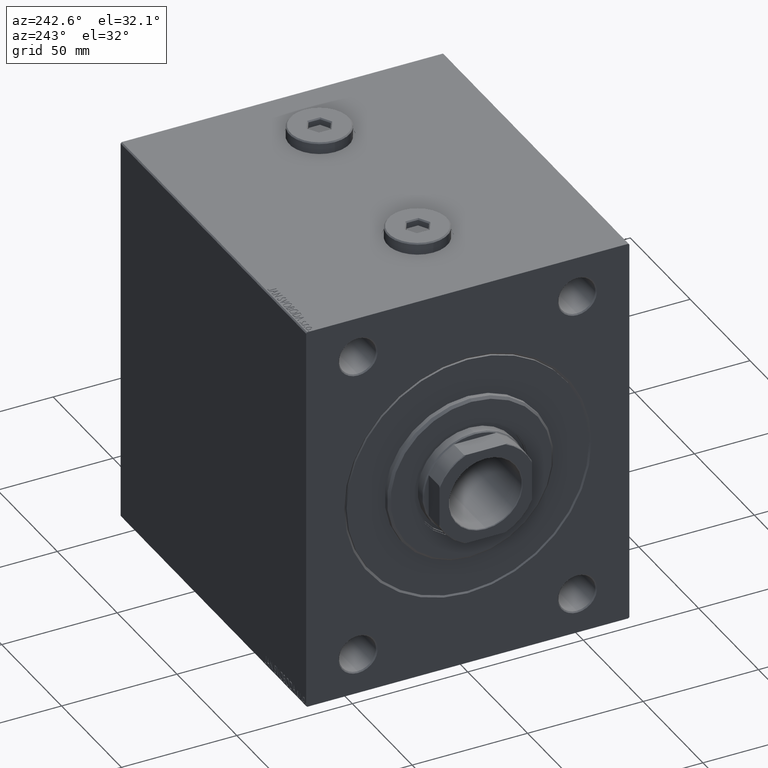
[diagram: clean part render]
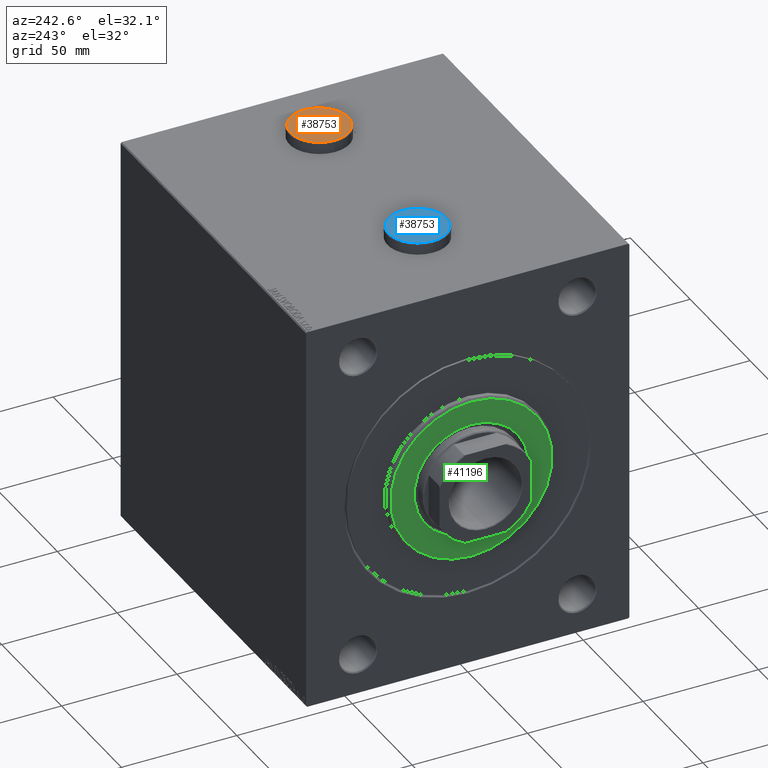
[diagram: same view with three faces highlighted in distinct colors, each labeled with its STEP entity id]
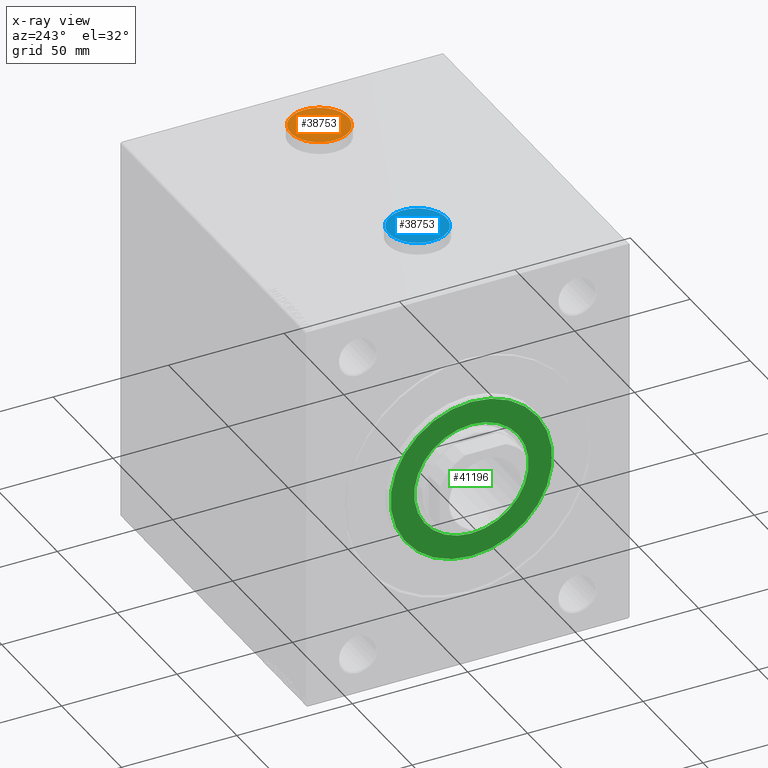
[diagram: x-ray of the same camera — body ghosted, the three highlighted faces saturated]
A machine part, auxiliary view with three faces highlighted in distinct colors.
The next image is the same camera in x-ray (body ghosted, the three faces saturated) — at least one of them is partly hidden behind the body in this view.
Their STEP definitions:

[orange] entity #38753 — the highlighted planar face has unit normal (0, 0, 1).
#335 = CARTESIAN_POINT ( 'NONE',  ( 4.833333333333341919, -2.790526301083194216, 5.000000000000000000 ) ) ;
#1360 = CIRCLE ( 'NONE', #36787, 12.50000000000001066 ) ;
#1605 = LINE ( 'NONE', #15712, #33909 ) ;
#1746 = DIRECTION ( 'NONE',  ( -0.8660254037844385966, 0.5000000000000001110, 0.000000000000000000 ) ) ;
#2842 = LINE ( 'NONE', #23191, #15684 ) ;
#3436 = ORIENTED_EDGE ( 'NONE', *, *, #6638, .T. ) ;
#3451 = VERTEX_POINT ( 'NONE', #17042 ) ;
#4862 = FACE_OUTER_BOUND ( 'NONE', #30778, .T. ) ;
#6049 = CARTESIAN_POINT ( 'NONE',  ( -4.833333333333340143, 2.790526301083195104, 5.000000000000000000 ) ) ;
#6568 = DIRECTION ( 'NONE',  ( 0.8660254037844388186, 0.4999999999999997780, 0.000000000000000000 ) ) ;
#6638 = EDGE_CURVE ( 'NONE', #3451, #8632, #1360, .T. ) ;
#8632 = VERTEX_POINT ( 'NONE', #35015 ) ;
#9058 = EDGE_CURVE ( 'NONE', #36765, #10443, #23319, .T. ) ;
#9472 = CARTESIAN_POINT ( 'NONE',  ( 4.833333333333341919, 2.790526301083194216, 5.000000000000000000 ) ) ;
#9677 = AXIS2_PLACEMENT_3D ( 'NONE', #25896, #18963, #15508 ) ;
#10304 = DIRECTION ( 'NONE',  ( 0.000000000000000000, 1.000000000000000000, 0.000000000000000000 ) ) ;
#10443 = VERTEX_POINT ( 'NONE', #9472 ) ;
#10695 = EDGE_CURVE ( 'NONE', #27374, #36765, #24578, .T. ) ;
#10921 = VERTEX_POINT ( 'NONE', #38617 ) ;
#12031 = EDGE_CURVE ( 'NONE', #10921, #27610, #43817, .T. ) ;
#12189 = DIRECTION ( 'NONE',  ( -0.8660254037844387076, -0.4999999999999998335, 0.000000000000000000 ) ) ;
#15508 = DIRECTION ( 'NONE',  ( 1.000000000000000000, 0.000000000000000000, -0.000000000000000000 ) ) ;
#15673 = EDGE_CURVE ( 'NONE', #18970, #10921, #19565, .T. ) ;
#15684 = VECTOR ( 'NONE', #23884, 1000.000000000000000 ) ;
#15712 = CARTESIAN_POINT ( 'NONE',  ( -4.833333333333340143, 2.501851166488380240, 5.000000000000000000 ) ) ;
#16583 = VECTOR ( 'NONE', #1746, 1000.000000000000114 ) ;
#17042 = CARTESIAN_POINT ( 'NONE',  ( -12.50000000000001066, 0.000000000000000000, 5.000000000000000000 ) ) ;
#17664 = DIRECTION ( 'NONE',  ( 0.000000000000000000, 0.000000000000000000, 1.000000000000000000 ) ) ;
#18755 = ORIENTED_EDGE ( 'NONE', *, *, #38812, .T. ) ;
#18963 = DIRECTION ( 'NONE',  ( 0.000000000000000000, 0.000000000000000000, 1.000000000000000000 ) ) ;
#18970 = VERTEX_POINT ( 'NONE', #335 ) ;
#19565 = LINE ( 'NONE', #23498, #29908 ) ;
#19871 = VECTOR ( 'NONE', #29780, 1000.000000000000000 ) ;
#20363 = ORIENTED_EDGE ( 'NONE', *, *, #9058, .T. ) ;
#22341 = CARTESIAN_POINT ( 'NONE',  ( -4.583333333333337478, -2.934863868380603424, 5.000000000000000000 ) ) ;
#23191 = CARTESIAN_POINT ( 'NONE',  ( 4.833333333333341919, -2.501851166488378908, 5.000000000000000000 ) ) ;
#23319 = LINE ( 'NONE', #41119, #19871 ) ;
#23498 = CARTESIAN_POINT ( 'NONE',  ( 0.2500000000000015543, -5.436715034868981888, 5.000000000000000000 ) ) ;
#23884 = DIRECTION ( 'NONE',  ( 0.000000000000000000, -1.000000000000000000, 0.000000000000000000 ) ) ;
#24578 = LINE ( 'NONE', #27593, #44586 ) ;
#25666 = FACE_BOUND ( 'NONE', #34759, .T. ) ;
#25896 = CARTESIAN_POINT ( 'NONE',  ( 0.000000000000000000, 0.000000000000000000, 5.000000000000000000 ) ) ;
#27374 = VERTEX_POINT ( 'NONE', #6049 ) ;
#27593 = CARTESIAN_POINT ( 'NONE',  ( -0.2500000000000021094, 5.436715034868981000, 5.000000000000000000 ) ) ;
#27610 = VERTEX_POINT ( 'NONE', #30707 ) ;
#28818 = AXIS2_PLACEMENT_3D ( 'NONE', #33730, #37895, #40904 ) ;
#29780 = DIRECTION ( 'NONE',  ( 0.8660254037844387076, -0.4999999999999998890, 0.000000000000000000 ) ) ;
#29908 = VECTOR ( 'NONE', #12189, 1000.000000000000000 ) ;
#30707 = CARTESIAN_POINT ( 'NONE',  ( -4.833333333333340143, -2.790526301083195104, 5.000000000000000000 ) ) ;
#30778 = EDGE_LOOP ( 'NONE', ( #3436, #18755 ) ) ;
#31060 = EDGE_CURVE ( 'NONE', #27610, #27374, #1605, .T. ) ;
#33275 = CIRCLE ( 'NONE', #28818, 12.50000000000001066 ) ;
#33730 = CARTESIAN_POINT ( 'NONE',  ( 0.000000000000000000, 0.000000000000000000, 5.000000000000000000 ) ) ;
#33909 = VECTOR ( 'NONE', #10304, 1000.000000000000000 ) ;
#34759 = EDGE_LOOP ( 'NONE', ( #42486, #45730, #20363, #37425, #42068, #42895 ) ) ;
#35015 = CARTESIAN_POINT ( 'NONE',  ( 12.50000000000001066, 1.561424668912876097E-15, 5.000000000000000000 ) ) ;
#36062 = PLANE ( 'NONE',  #9677 ) ;
#36765 = VERTEX_POINT ( 'NONE', #42601 ) ;
#36787 = AXIS2_PLACEMENT_3D ( 'NONE', #42619, #17664, #41938 ) ;
#37425 = ORIENTED_EDGE ( 'NONE', *, *, #43712, .T. ) ;
#37895 = DIRECTION ( 'NONE',  ( 0.000000000000000000, 0.000000000000000000, 1.000000000000000000 ) ) ;
#38617 = CARTESIAN_POINT ( 'NONE',  ( -1.883403334290581714E-15, -5.581052602166390209, 5.000000000000000000 ) ) ;
#38753 = ADVANCED_FACE ( 'NONE', ( #25666, #4862 ), #36062, .T. ) ;
#38812 = EDGE_CURVE ( 'NONE', #8632, #3451, #33275, .T. ) ;
#40904 = DIRECTION ( 'NONE',  ( 1.000000000000000000, 0.000000000000000000, 0.000000000000000000 ) ) ;
#41119 = CARTESIAN_POINT ( 'NONE',  ( 4.583333333333339255, 2.934863868380602092, 5.000000000000000000 ) ) ;
#41938 = DIRECTION ( 'NONE',  ( 1.000000000000000000, 0.000000000000000000, 0.000000000000000000 ) ) ;
#42068 = ORIENTED_EDGE ( 'NONE', *, *, #15673, .T. ) ;
#42486 = ORIENTED_EDGE ( 'NONE', *, *, #31060, .T. ) ;
#42601 = CARTESIAN_POINT ( 'NONE',  ( 1.144664513637780713E-15, 5.581052602166389320, 5.000000000000000000 ) ) ;
#42619 = CARTESIAN_POINT ( 'NONE',  ( 0.000000000000000000, 0.000000000000000000, 5.000000000000000000 ) ) ;
#42895 = ORIENTED_EDGE ( 'NONE', *, *, #12031, .T. ) ;
#43712 = EDGE_CURVE ( 'NONE', #10443, #18970, #2842, .T. ) ;
#43817 = LINE ( 'NONE', #22341, #16583 ) ;
#44586 = VECTOR ( 'NONE', #6568, 1000.000000000000114 ) ;
#45730 = ORIENTED_EDGE ( 'NONE', *, *, #10695, .T. ) ;

[blue] entity #38753 — the highlighted planar face has unit normal (0, 0, 1).
#335 = CARTESIAN_POINT ( 'NONE',  ( 4.833333333333341919, -2.790526301083194216, 5.000000000000000000 ) ) ;
#1360 = CIRCLE ( 'NONE', #36787, 12.50000000000001066 ) ;
#1605 = LINE ( 'NONE', #15712, #33909 ) ;
#1746 = DIRECTION ( 'NONE',  ( -0.8660254037844385966, 0.5000000000000001110, 0.000000000000000000 ) ) ;
#2842 = LINE ( 'NONE', #23191, #15684 ) ;
#3436 = ORIENTED_EDGE ( 'NONE', *, *, #6638, .T. ) ;
#3451 = VERTEX_POINT ( 'NONE', #17042 ) ;
#4862 = FACE_OUTER_BOUND ( 'NONE', #30778, .T. ) ;
#6049 = CARTESIAN_POINT ( 'NONE',  ( -4.833333333333340143, 2.790526301083195104, 5.000000000000000000 ) ) ;
#6568 = DIRECTION ( 'NONE',  ( 0.8660254037844388186, 0.4999999999999997780, 0.000000000000000000 ) ) ;
#6638 = EDGE_CURVE ( 'NONE', #3451, #8632, #1360, .T. ) ;
#8632 = VERTEX_POINT ( 'NONE', #35015 ) ;
#9058 = EDGE_CURVE ( 'NONE', #36765, #10443, #23319, .T. ) ;
#9472 = CARTESIAN_POINT ( 'NONE',  ( 4.833333333333341919, 2.790526301083194216, 5.000000000000000000 ) ) ;
#9677 = AXIS2_PLACEMENT_3D ( 'NONE', #25896, #18963, #15508 ) ;
#10304 = DIRECTION ( 'NONE',  ( 0.000000000000000000, 1.000000000000000000, 0.000000000000000000 ) ) ;
#10443 = VERTEX_POINT ( 'NONE', #9472 ) ;
#10695 = EDGE_CURVE ( 'NONE', #27374, #36765, #24578, .T. ) ;
#10921 = VERTEX_POINT ( 'NONE', #38617 ) ;
#12031 = EDGE_CURVE ( 'NONE', #10921, #27610, #43817, .T. ) ;
#12189 = DIRECTION ( 'NONE',  ( -0.8660254037844387076, -0.4999999999999998335, 0.000000000000000000 ) ) ;
#15508 = DIRECTION ( 'NONE',  ( 1.000000000000000000, 0.000000000000000000, -0.000000000000000000 ) ) ;
#15673 = EDGE_CURVE ( 'NONE', #18970, #10921, #19565, .T. ) ;
#15684 = VECTOR ( 'NONE', #23884, 1000.000000000000000 ) ;
#15712 = CARTESIAN_POINT ( 'NONE',  ( -4.833333333333340143, 2.501851166488380240, 5.000000000000000000 ) ) ;
#16583 = VECTOR ( 'NONE', #1746, 1000.000000000000114 ) ;
#17042 = CARTESIAN_POINT ( 'NONE',  ( -12.50000000000001066, 0.000000000000000000, 5.000000000000000000 ) ) ;
#17664 = DIRECTION ( 'NONE',  ( 0.000000000000000000, 0.000000000000000000, 1.000000000000000000 ) ) ;
#18755 = ORIENTED_EDGE ( 'NONE', *, *, #38812, .T. ) ;
#18963 = DIRECTION ( 'NONE',  ( 0.000000000000000000, 0.000000000000000000, 1.000000000000000000 ) ) ;
#18970 = VERTEX_POINT ( 'NONE', #335 ) ;
#19565 = LINE ( 'NONE', #23498, #29908 ) ;
#19871 = VECTOR ( 'NONE', #29780, 1000.000000000000000 ) ;
#20363 = ORIENTED_EDGE ( 'NONE', *, *, #9058, .T. ) ;
#22341 = CARTESIAN_POINT ( 'NONE',  ( -4.583333333333337478, -2.934863868380603424, 5.000000000000000000 ) ) ;
#23191 = CARTESIAN_POINT ( 'NONE',  ( 4.833333333333341919, -2.501851166488378908, 5.000000000000000000 ) ) ;
#23319 = LINE ( 'NONE', #41119, #19871 ) ;
#23498 = CARTESIAN_POINT ( 'NONE',  ( 0.2500000000000015543, -5.436715034868981888, 5.000000000000000000 ) ) ;
#23884 = DIRECTION ( 'NONE',  ( 0.000000000000000000, -1.000000000000000000, 0.000000000000000000 ) ) ;
#24578 = LINE ( 'NONE', #27593, #44586 ) ;
#25666 = FACE_BOUND ( 'NONE', #34759, .T. ) ;
#25896 = CARTESIAN_POINT ( 'NONE',  ( 0.000000000000000000, 0.000000000000000000, 5.000000000000000000 ) ) ;
#27374 = VERTEX_POINT ( 'NONE', #6049 ) ;
#27593 = CARTESIAN_POINT ( 'NONE',  ( -0.2500000000000021094, 5.436715034868981000, 5.000000000000000000 ) ) ;
#27610 = VERTEX_POINT ( 'NONE', #30707 ) ;
#28818 = AXIS2_PLACEMENT_3D ( 'NONE', #33730, #37895, #40904 ) ;
#29780 = DIRECTION ( 'NONE',  ( 0.8660254037844387076, -0.4999999999999998890, 0.000000000000000000 ) ) ;
#29908 = VECTOR ( 'NONE', #12189, 1000.000000000000000 ) ;
#30707 = CARTESIAN_POINT ( 'NONE',  ( -4.833333333333340143, -2.790526301083195104, 5.000000000000000000 ) ) ;
#30778 = EDGE_LOOP ( 'NONE', ( #3436, #18755 ) ) ;
#31060 = EDGE_CURVE ( 'NONE', #27610, #27374, #1605, .T. ) ;
#33275 = CIRCLE ( 'NONE', #28818, 12.50000000000001066 ) ;
#33730 = CARTESIAN_POINT ( 'NONE',  ( 0.000000000000000000, 0.000000000000000000, 5.000000000000000000 ) ) ;
#33909 = VECTOR ( 'NONE', #10304, 1000.000000000000000 ) ;
#34759 = EDGE_LOOP ( 'NONE', ( #42486, #45730, #20363, #37425, #42068, #42895 ) ) ;
#35015 = CARTESIAN_POINT ( 'NONE',  ( 12.50000000000001066, 1.561424668912876097E-15, 5.000000000000000000 ) ) ;
#36062 = PLANE ( 'NONE',  #9677 ) ;
#36765 = VERTEX_POINT ( 'NONE', #42601 ) ;
#36787 = AXIS2_PLACEMENT_3D ( 'NONE', #42619, #17664, #41938 ) ;
#37425 = ORIENTED_EDGE ( 'NONE', *, *, #43712, .T. ) ;
#37895 = DIRECTION ( 'NONE',  ( 0.000000000000000000, 0.000000000000000000, 1.000000000000000000 ) ) ;
#38617 = CARTESIAN_POINT ( 'NONE',  ( -1.883403334290581714E-15, -5.581052602166390209, 5.000000000000000000 ) ) ;
#38753 = ADVANCED_FACE ( 'NONE', ( #25666, #4862 ), #36062, .T. ) ;
#38812 = EDGE_CURVE ( 'NONE', #8632, #3451, #33275, .T. ) ;
#40904 = DIRECTION ( 'NONE',  ( 1.000000000000000000, 0.000000000000000000, 0.000000000000000000 ) ) ;
#41119 = CARTESIAN_POINT ( 'NONE',  ( 4.583333333333339255, 2.934863868380602092, 5.000000000000000000 ) ) ;
#41938 = DIRECTION ( 'NONE',  ( 1.000000000000000000, 0.000000000000000000, 0.000000000000000000 ) ) ;
#42068 = ORIENTED_EDGE ( 'NONE', *, *, #15673, .T. ) ;
#42486 = ORIENTED_EDGE ( 'NONE', *, *, #31060, .T. ) ;
#42601 = CARTESIAN_POINT ( 'NONE',  ( 1.144664513637780713E-15, 5.581052602166389320, 5.000000000000000000 ) ) ;
#42619 = CARTESIAN_POINT ( 'NONE',  ( 0.000000000000000000, 0.000000000000000000, 5.000000000000000000 ) ) ;
#42895 = ORIENTED_EDGE ( 'NONE', *, *, #12031, .T. ) ;
#43712 = EDGE_CURVE ( 'NONE', #10443, #18970, #2842, .T. ) ;
#43817 = LINE ( 'NONE', #22341, #16583 ) ;
#44586 = VECTOR ( 'NONE', #6568, 1000.000000000000114 ) ;
#45730 = ORIENTED_EDGE ( 'NONE', *, *, #10695, .T. ) ;

[green] entity #41196 — the highlighted planar face has unit normal (-1, 0, 0).
#497 = CARTESIAN_POINT ( 'NONE',  ( 3.000000000000000000, 0.000000000000000000, 0.000000000000000000 ) ) ;
#2350 = CIRCLE ( 'NONE', #41490, 24.75000000000000355 ) ;
#4380 = DIRECTION ( 'NONE',  ( 1.000000000000000000, 0.000000000000000000, 0.000000000000000000 ) ) ;
#6629 = AXIS2_PLACEMENT_3D ( 'NONE', #22573, #21884, #29482 ) ;
#7088 = EDGE_LOOP ( 'NONE', ( #7852, #42390 ) ) ;
#7207 = FACE_OUTER_BOUND ( 'NONE', #28866, .T. ) ;
#7852 = ORIENTED_EDGE ( 'NONE', *, *, #38363, .F. ) ;
#11541 = EDGE_CURVE ( 'NONE', #21719, #29465, #40130, .T. ) ;
#12788 = CARTESIAN_POINT ( 'NONE',  ( 3.000000000000000000, 0.000000000000000000, 0.000000000000000000 ) ) ;
#13320 = CARTESIAN_POINT ( 'NONE',  ( 3.000000000000000000, 0.000000000000000000, -24.75000000000000355 ) ) ;
#14607 = DIRECTION ( 'NONE',  ( 1.000000000000000000, -0.000000000000000000, 0.000000000000000000 ) ) ;
#18068 = PLANE ( 'NONE',  #30450 ) ;
#18450 = CARTESIAN_POINT ( 'NONE',  ( 3.000000000000000000, 4.347496136973104859E-15, -35.00000000000002842 ) ) ;
#21309 = FACE_BOUND ( 'NONE', #7088, .T. ) ;
#21719 = VERTEX_POINT ( 'NONE', #27695 ) ;
#21884 = DIRECTION ( 'NONE',  ( 1.000000000000000000, -0.000000000000000000, 0.000000000000000000 ) ) ;
#22573 = CARTESIAN_POINT ( 'NONE',  ( 3.000000000000000000, 0.000000000000000000, 0.000000000000000000 ) ) ;
#23136 = DIRECTION ( 'NONE',  ( 0.000000000000000000, 0.000000000000000000, -1.000000000000000000 ) ) ;
#25889 = AXIS2_PLACEMENT_3D ( 'NONE', #43972, #39816, #43753 ) ;
#26066 = ORIENTED_EDGE ( 'NONE', *, *, #31992, .T. ) ;
#27695 = CARTESIAN_POINT ( 'NONE',  ( 3.000000000000000000, 0.000000000000000000, 35.00000000000002842 ) ) ;
#28324 = VERTEX_POINT ( 'NONE', #31896 ) ;
#28866 = EDGE_LOOP ( 'NONE', ( #29968, #26066 ) ) ;
#29060 = AXIS2_PLACEMENT_3D ( 'NONE', #12788, #44203, #41435 ) ;
#29465 = VERTEX_POINT ( 'NONE', #18450 ) ;
#29482 = DIRECTION ( 'NONE',  ( 0.000000000000000000, 0.000000000000000000, -1.000000000000000000 ) ) ;
#29968 = ORIENTED_EDGE ( 'NONE', *, *, #11541, .T. ) ;
#30450 = AXIS2_PLACEMENT_3D ( 'NONE', #497, #14607, #23136 ) ;
#31896 = CARTESIAN_POINT ( 'NONE',  ( 3.000000000000000000, 3.031000827889699650E-15, 24.75000000000000355 ) ) ;
#31992 = EDGE_CURVE ( 'NONE', #29465, #21719, #37644, .T. ) ;
#32562 = DIRECTION ( 'NONE',  ( 0.000000000000000000, 0.000000000000000000, -1.000000000000000000 ) ) ;
#36033 = CARTESIAN_POINT ( 'NONE',  ( 3.000000000000000000, 0.000000000000000000, 0.000000000000000000 ) ) ;
#37644 = CIRCLE ( 'NONE', #6629, 35.00000000000002842 ) ;
#38363 = EDGE_CURVE ( 'NONE', #43427, #28324, #41413, .T. ) ;
#39816 = DIRECTION ( 'NONE',  ( 1.000000000000000000, 0.000000000000000000, 0.000000000000000000 ) ) ;
#40130 = CIRCLE ( 'NONE', #29060, 35.00000000000002842 ) ;
#41196 = ADVANCED_FACE ( 'NONE', ( #7207, #21309 ), #18068, .T. ) ;
#41413 = CIRCLE ( 'NONE', #25889, 24.75000000000000355 ) ;
#41435 = DIRECTION ( 'NONE',  ( 0.000000000000000000, 0.000000000000000000, -1.000000000000000000 ) ) ;
#41490 = AXIS2_PLACEMENT_3D ( 'NONE', #36033, #4380, #32562 ) ;
#42380 = EDGE_CURVE ( 'NONE', #28324, #43427, #2350, .T. ) ;
#42390 = ORIENTED_EDGE ( 'NONE', *, *, #42380, .F. ) ;
#43427 = VERTEX_POINT ( 'NONE', #13320 ) ;
#43753 = DIRECTION ( 'NONE',  ( 0.000000000000000000, 0.000000000000000000, -1.000000000000000000 ) ) ;
#43972 = CARTESIAN_POINT ( 'NONE',  ( 3.000000000000000000, 0.000000000000000000, 0.000000000000000000 ) ) ;
#44203 = DIRECTION ( 'NONE',  ( 1.000000000000000000, -0.000000000000000000, 0.000000000000000000 ) ) ;